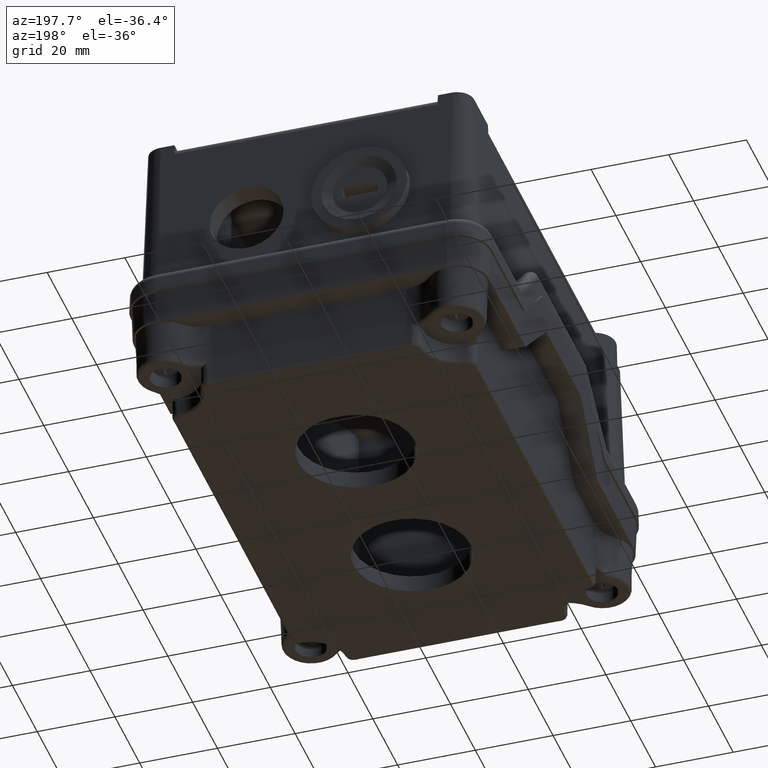
[diagram: clean part render]
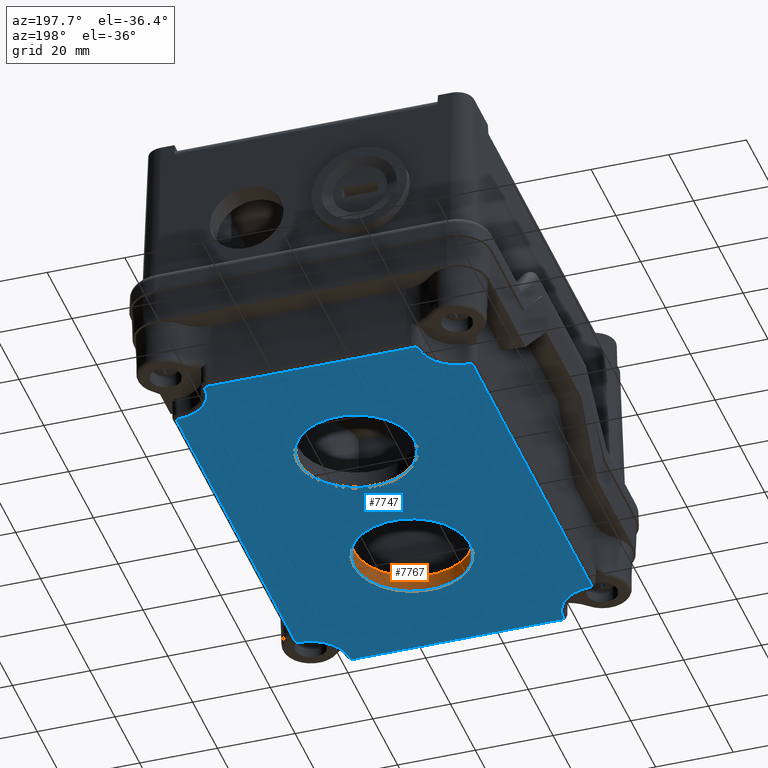
[diagram: same view with the hole feature highlighted: cylindrical wall and planar end face, labeled with their STEP entity ids]
A machine part, auxiliary view. The highlighted faces form one hole feature of diameter 30 mm: the cylindrical wall (entity #7767, orange) and its adjacent planar end face (entity #7747, blue) — they share a circular edge in the B-rep.
Wall:
#7736=CARTESIAN_POINT('',(52.783278526198842,-31.297894880833084,40.500000000000000));
#7737=VERTEX_POINT('',#7736);
#7738=CARTESIAN_POINT('',(37.783278526198842,-31.297894880833084,40.500000000000000));
#7739=DIRECTION('',(0.0,0.0,-1.0));
#7740=DIRECTION('',(-1.0,0.0,0.0));
#7741=AXIS2_PLACEMENT_3D('',#7738,#7739,#7740);
#7742=CIRCLE('',#7741,15.0);
#7743=EDGE_CURVE('',#7737,#7737,#7742,.T.);
#7748=CARTESIAN_POINT('',(37.783278526198842,-31.297894880833084,40.500000000000000));
#7749=DIRECTION('',(0.0,0.0,-1.0));
#7750=DIRECTION('',(-1.0,0.0,0.0));
#7751=AXIS2_PLACEMENT_3D('',#7748,#7749,#7750);
#7752=CYLINDRICAL_SURFACE('',#7751,15.0);
#7753=CARTESIAN_POINT('',(52.783278526198842,-31.297894880833084,36.0));
#7754=VERTEX_POINT('',#7753);
#7755=CARTESIAN_POINT('',(37.783278526198842,-31.297894880833084,36.0));
#7756=DIRECTION('',(0.0,0.0,1.0));
#7757=DIRECTION('',(-1.0,0.0,0.0));
#7758=AXIS2_PLACEMENT_3D('',#7755,#7756,#7757);
#7759=CIRCLE('',#7758,15.0);
#7760=EDGE_CURVE('',#7754,#7754,#7759,.T.);
#7761=ORIENTED_EDGE('',*,*,#7760,.F.);
#7762=EDGE_LOOP('',(#7761));
#7763=FACE_OUTER_BOUND('',#7762,.T.);
#7764=ORIENTED_EDGE('',*,*,#7743,.F.);
#7765=EDGE_LOOP('',(#7764));
#7766=FACE_BOUND('',#7765,.T.);
#7767=ADVANCED_FACE('',(#7763,#7766),#7752,.F.);
End face:
#5559=CARTESIAN_POINT('',(-0.336741534578411,37.261391683954855,40.500000000000000));
#5560=VERTEX_POINT('',#5559);
#5576=CARTESIAN_POINT('',(-0.336741534578376,-54.857181445621052,40.500000000000000));
#5577=VERTEX_POINT('',#5576);
#5585=CARTESIAN_POINT('',(-0.336741534578376,-54.857181445621052,40.500000000000000));
#5586=DIRECTION('',(0.0,1.0,0.0));
#5587=VECTOR('',#5586,92.118573129575907);
#5588=LINE('',#5585,#5587);
#5589=EDGE_CURVE('',#5577,#5560,#5588,.T.);
#5599=CARTESIAN_POINT('',(-0.416955998710054,38.585317413578004,40.500000000000000));
#5600=VERTEX_POINT('',#5599);
#5610=CARTESIAN_POINT('',(-11.302430309385482,37.261391683954855,40.500000000000000));
#5611=DIRECTION('',(0.0,0.0,1.0));
#5612=DIRECTION('',(0.998177473758042,0.060346755356137,0.0));
#5613=AXIS2_PLACEMENT_3D('',#5610,#5611,#5612);
#5614=CIRCLE('',#5613,10.965688774807212);
#5615=EDGE_CURVE('',#5560,#5600,#5614,.T.);
#5627=CARTESIAN_POINT('',(-0.416955998710128,-56.181107175244172,40.500000000000000));
#5628=VERTEX_POINT('',#5627);
#5636=CARTESIAN_POINT('',(-11.302430309385379,-54.857181445621052,40.500000000000000));
#5637=DIRECTION('',(0.0,0.0,1.0));
#5638=DIRECTION('',(0.998177473758042,-0.060346755356137,0.0));
#5639=AXIS2_PLACEMENT_3D('',#5636,#5637,#5638);
#5640=CIRCLE('',#5639,10.965688774807031);
#5641=EDGE_CURVE('',#5628,#5577,#5640,.T.);
#5751=CARTESIAN_POINT('',(0.549705304405506,39.705654910625157,40.500000000000000));
#5752=VERTEX_POINT('',#5751);
#5778=CARTESIAN_POINT('',(-0.416955998710062,38.585317413578068,40.500000000000000));
#5779=CARTESIAN_POINT('',(-0.426482221781451,38.663643149079007,40.500000000000000));
#5780=CARTESIAN_POINT('',(-0.426749987107683,38.804627468144083,40.499999999999808));
#5781=CARTESIAN_POINT('',(-0.396032246528081,38.950530565932340,40.499999999999780));
#5782=CARTESIAN_POINT('',(-0.371849090072704,39.025795377982419,40.499999999999780));
#5783=CARTESIAN_POINT('',(-0.338760014069456,39.119336805961304,40.499999999999787));
#5784=CARTESIAN_POINT('',(-0.278715663759485,39.235782000387509,40.499999999999815));
#5785=CARTESIAN_POINT('',(-0.182662596023846,39.361136775176298,40.499999999999815));
#5786=CARTESIAN_POINT('',(-0.015515514187188,39.532937454064410,40.499999999999872));
#5787=CARTESIAN_POINT('',(0.234066703792749,39.669166527768951,40.499999999999922));
#5788=CARTESIAN_POINT('',(0.470830399737453,39.703552725720144,40.500000000000000));
#5789=CARTESIAN_POINT('',(0.549705304405506,39.705654910625157,40.500000000000000));
#5790=B_SPLINE_CURVE_WITH_KNOTS('',3,(#5778,#5779,#5780,#5781,#5782,#5783,#5784,#5785,#5786,#5787,#5788,#5789),.UNSPECIFIED.,.F.,.U.,(4,1,1,1,1,1,1,1,1,4),(0.0,0.023670874067073,0.041424029617378,0.044382888875763,0.047341748134147,0.071012622201220,0.082848059234757,0.094683496268293,0.142025244402440,0.165696118469513),.UNSPECIFIED.);
#5791=EDGE_CURVE('',#5600,#5752,#5790,.T.);
#5920=CARTESIAN_POINT('',(0.549705304405435,-57.301444672291339,40.500000000000000));
#5921=VERTEX_POINT('',#5920);
#5929=CARTESIAN_POINT('',(0.549705304405428,-57.301444672291339,40.500000000000000));
#5930=CARTESIAN_POINT('',(0.470830399736933,-57.299342487386319,40.500000000000000));
#5931=CARTESIAN_POINT('',(0.312876737412766,-57.276249987053816,40.499999999999964));
#5932=CARTESIAN_POINT('',(0.091519842894753,-57.187290212524758,40.499999999999964));
#5933=CARTESIAN_POINT('',(-0.054844518446183,-57.083089145379290,40.499999999999950));
#5934=CARTESIAN_POINT('',(-0.140881661954740,-56.999887636847404,40.499999999999943));
#5935=CARTESIAN_POINT('',(-0.221326377444691,-56.912229873491178,40.499999999999943));
#5936=CARTESIAN_POINT('',(-0.288220557187907,-56.813312156864058,40.499999999999972));
#5937=CARTESIAN_POINT('',(-0.339821074052701,-56.705172118623878,40.499999999999950));
#5938=CARTESIAN_POINT('',(-0.384587155654210,-56.594711449037938,40.499999999999964));
#5939=CARTESIAN_POINT('',(-0.426733577401938,-56.420554670263925,40.499999999999972));
#5940=CARTESIAN_POINT('',(-0.426482221781576,-56.259432910745630,40.500000000000000));
#5941=CARTESIAN_POINT('',(-0.416955998710134,-56.181107175244250,40.500000000000000));
#5942=B_SPLINE_CURVE_WITH_KNOTS('',3,(#5929,#5930,#5931,#5932,#5933,#5934,#5935,#5936,#5937,#5938,#5939,#5940,#5941),.UNSPECIFIED.,.F.,.U.,(4,1,1,1,1,1,1,1,1,1,4),(0.0,0.023670874067206,0.047341748134412,0.071012622201618,0.076930340718420,0.082848059235221,0.106518933302427,0.112436651819229,0.118354370336031,0.142025244403237,0.165696118470443),.UNSPECIFIED.);
#5943=EDGE_CURVE('',#5921,#5628,#5942,.T.);
#5953=CARTESIAN_POINT('',(10.279728734740477,49.435678340959385,40.500000000000000));
#5954=VERTEX_POINT('',#5953);
#5972=CARTESIAN_POINT('',(0.283278526198748,49.702105119166902,40.500000000000000));
#5973=DIRECTION('',(0.0,0.0,1.0));
#5974=DIRECTION('',(0.707106781186545,-0.707106781186550,0.0));
#5975=AXIS2_PLACEMENT_3D('',#5972,#5973,#5974);
#5976=CIRCLE('',#5975,10.0);
#5977=EDGE_CURVE('',#5752,#5954,#5976,.T.);
#5989=CARTESIAN_POINT('',(10.279728734740479,-67.031468102625610,40.500000000000000));
#5990=VERTEX_POINT('',#5989);
#5998=CARTESIAN_POINT('',(0.283278526198749,-67.297894880833098,40.500000000000000));
#5999=DIRECTION('',(0.0,0.0,1.0));
#6000=DIRECTION('',(0.707106781186548,0.707106781186547,0.0));
#6001=AXIS2_PLACEMENT_3D('',#5998,#5999,#6000);
#6002=CIRCLE('',#6001,10.0);
#6003=EDGE_CURVE('',#5990,#5921,#6002,.T.);
#6113=CARTESIAN_POINT('',(11.400066231787580,50.402339644075759,40.500000000000000));
#6114=VERTEX_POINT('',#6113);
#6138=CARTESIAN_POINT('',(10.279728734740498,49.435678340960138,40.500000000000000));
#6139=CARTESIAN_POINT('',(10.281305366113568,49.494834245348663,40.500000000000000));
#6140=CARTESIAN_POINT('',(10.290442645006078,49.574108346244188,40.500000000000021));
#6141=CARTESIAN_POINT('',(10.327701524942045,49.729348422229663,40.500000000000021));
#6142=CARTESIAN_POINT('',(10.394368737991742,49.895002657294143,40.500000000000028));
#6143=CARTESIAN_POINT('',(10.499936182284976,50.042480351163434,40.500000000000028));
#6144=CARTESIAN_POINT('',(10.610011937254189,50.155813882994494,40.500000000000014));
#6145=CARTESIAN_POINT('',(10.733994915855659,50.256492181403232,40.500000000000036));
#6146=CARTESIAN_POINT('',(10.930087346563184,50.356671023864912,40.500000000000021));
#6147=CARTESIAN_POINT('',(11.161999848725523,50.412156056838676,40.500000000000021));
#6148=CARTESIAN_POINT('',(11.321740859225304,50.411865823005407,40.500000000000000));
#6149=CARTESIAN_POINT('',(11.400066231787580,50.402339644075767,40.500000000000000));
#6150=B_SPLINE_CURVE_WITH_KNOTS('',3,(#6138,#6139,#6140,#6141,#6142,#6143,#6144,#6145,#6146,#6147,#6148,#6149),.UNSPECIFIED.,.F.,.U.,(4,1,1,1,1,1,1,1,1,4),(0.0,0.017753073287348,0.023670764383131,0.047341528766262,0.071012293149393,0.076929984245176,0.094683057532524,0.118353821915655,0.142024586298787,0.165695350681918),.UNSPECIFIED.);
#6151=EDGE_CURVE('',#5954,#6114,#6150,.T.);
#6271=CARTESIAN_POINT('',(11.400066231787580,-67.998129405741878,40.500000000000000));
#6272=VERTEX_POINT('',#6271);
#6280=CARTESIAN_POINT('',(11.400066231787580,-67.998129405741878,40.500000000000000));
#6281=CARTESIAN_POINT('',(11.321740859224745,-68.007655584671582,40.500000000000000));
#6282=CARTESIAN_POINT('',(11.082498934690406,-68.008436048963645,40.500000000000036));
#6283=CARTESIAN_POINT('',(10.815638859349370,-67.910170913589809,40.500000000000050));
#6284=CARTESIAN_POINT('',(10.625191949040410,-67.764650366488425,40.500000000000078));
#6285=CARTESIAN_POINT('',(10.511844708894511,-67.654675235715416,40.500000000000064));
#6286=CARTESIAN_POINT('',(10.435415112740520,-67.548255114636760,40.500000000000085));
#6287=CARTESIAN_POINT('',(10.388992703377404,-67.460570353079461,40.500000000000078));
#6288=CARTESIAN_POINT('',(10.354051155022898,-67.389661117339386,40.500000000000078));
#6289=CARTESIAN_POINT('',(10.302276953244990,-67.249824706873042,40.500000000000085));
#6290=CARTESIAN_POINT('',(10.281830909904604,-67.110342641811513,40.500000000000000));
#6291=CARTESIAN_POINT('',(10.279728734740496,-67.031468102626263,40.500000000000000));
#6292=B_SPLINE_CURVE_WITH_KNOTS('',3,(#6280,#6281,#6282,#6283,#6284,#6285,#6286,#6287,#6288,#6289,#6290,#6291),.UNSPECIFIED.,.F.,.U.,(4,1,1,1,1,1,1,1,1,4),(0.0,0.023670764383300,0.071012293149899,0.082847675341549,0.094683057533199,0.118353821916499,0.121312667464411,0.124271513012324,0.142024586299799,0.165695350683099),.UNSPECIFIED.);
#6293=EDGE_CURVE('',#6272,#5990,#6292,.T.);
#6303=CARTESIAN_POINT('',(12.723991961410807,50.322125179943953,40.500000000000000));
#6304=VERTEX_POINT('',#6303);
#6314=CARTESIAN_POINT('',(12.723991961410805,61.287813954751122,40.500000000000000));
#6315=DIRECTION('',(0.0,0.0,1.0));
#6316=DIRECTION('',(-0.060346755356137,-0.998177473758042,0.0));
#6317=AXIS2_PLACEMENT_3D('',#6314,#6315,#6316);
#6318=CIRCLE('',#6317,10.965688774807163);
#6319=EDGE_CURVE('',#6114,#6304,#6318,.T.);
#6331=CARTESIAN_POINT('',(12.723991961410801,-67.917914941610093,40.500000000000000));
#6332=VERTEX_POINT('',#6331);
#6340=CARTESIAN_POINT('',(12.723991961410805,-78.883603716417213,40.500000000000000));
#6341=DIRECTION('',(0.0,0.0,1.0));
#6342=DIRECTION('',(-0.060346755356138,0.998177473758042,0.0));
#6343=AXIS2_PLACEMENT_3D('',#6340,#6341,#6342);
#6344=CIRCLE('',#6343,10.965688774807122);
#6345=EDGE_CURVE('',#6332,#6272,#6344,.T.);
#6363=CARTESIAN_POINT('',(62.842565090986717,50.322125179944052,40.500000000000000));
#6364=VERTEX_POINT('',#6363);
#6379=CARTESIAN_POINT('',(12.723991961410807,50.322125179943953,40.500000000000000));
#6380=DIRECTION('',(1.0,0.0,0.0));
#6381=VECTOR('',#6380,50.118573129575907);
#6382=LINE('',#6379,#6381);
#6383=EDGE_CURVE('',#6304,#6364,#6382,.T.);
#6395=CARTESIAN_POINT('',(62.842565090986710,-67.917914941610206,40.500000000000000));
#6396=VERTEX_POINT('',#6395);
#6404=CARTESIAN_POINT('',(62.842565090986710,-67.917914941610206,40.500000000000000));
#6405=DIRECTION('',(-1.0,0.0,0.0));
#6406=VECTOR('',#6405,50.118573129575907);
#6407=LINE('',#6404,#6406);
#6408=EDGE_CURVE('',#6396,#6332,#6407,.T.);
#6425=CARTESIAN_POINT('',(64.166490820609866,50.402339644075738,40.500000000000000));
#6426=VERTEX_POINT('',#6425);
#6436=CARTESIAN_POINT('',(62.842565090986717,61.287813954751122,40.500000000000000));
#6437=DIRECTION('',(0.0,0.0,1.0));
#6438=DIRECTION('',(0.060346755356138,-0.998177473758042,0.0));
#6439=AXIS2_PLACEMENT_3D('',#6436,#6437,#6438);
#6440=CIRCLE('',#6439,10.965688774807164);
#6441=EDGE_CURVE('',#6364,#6426,#6440,.T.);
#6453=CARTESIAN_POINT('',(64.166490820609880,-67.998129405742063,40.500000000000000));
#6454=VERTEX_POINT('',#6453);
#6462=CARTESIAN_POINT('',(62.842565090986710,-78.883603716417312,40.500000000000000));
#6463=DIRECTION('',(0.0,0.0,1.0));
#6464=DIRECTION('',(0.060346755356140,0.998177473758042,0.0));
#6465=AXIS2_PLACEMENT_3D('',#6462,#6463,#6464);
#6466=CIRCLE('',#6465,10.965688774807038);
#6467=EDGE_CURVE('',#6454,#6396,#6466,.T.);
#6561=CARTESIAN_POINT('',(65.286828317657026,49.435678340960180,40.500000000000000));
#6562=VERTEX_POINT('',#6561);
#6586=CARTESIAN_POINT('',(64.166490820609937,50.402339644075738,40.500000000000000));
#6587=CARTESIAN_POINT('',(64.244816556110877,50.411865867147128,40.500000000000000));
#6588=CARTESIAN_POINT('',(64.405747022648725,50.412201503566934,40.500000000000007));
#6589=CARTESIAN_POINT('',(64.638062305865773,50.356096653003711,40.500000000000007));
#6590=CARTESIAN_POINT('',(64.852154405461476,50.246243517156159,40.500000000000007));
#6591=CARTESIAN_POINT('',(65.033251881175374,50.089480449130370,40.500000000000007));
#6592=CARTESIAN_POINT('',(65.172995540195842,49.893638128479743,40.500000000000000));
#6593=CARTESIAN_POINT('',(65.261613782242449,49.672540571095524,40.500000000000007));
#6594=CARTESIAN_POINT('',(65.284726132752013,49.514553245628242,40.500000000000000));
#6595=CARTESIAN_POINT('',(65.286828317657026,49.435678340960187,40.500000000000000));
#6596=B_SPLINE_CURVE_WITH_KNOTS('',3,(#6586,#6587,#6588,#6589,#6590,#6591,#6592,#6593,#6594,#6595),.UNSPECIFIED.,.F.,.U.,(4,1,1,1,1,1,1,4),(0.0,0.023670874067073,0.047341748134146,0.071012622201220,0.094683496268293,0.118354370335366,0.142025244402439,0.165696118469513),.UNSPECIFIED.);
#6597=EDGE_CURVE('',#6426,#6562,#6596,.T.);
#6717=CARTESIAN_POINT('',(65.286828317657054,-67.031468102626476,40.500000000000000));
#6718=VERTEX_POINT('',#6717);
#6726=CARTESIAN_POINT('',(65.286828317657054,-67.031468102626491,40.500000000000000));
#6727=CARTESIAN_POINT('',(65.284726132752041,-67.110343007294972,40.500000000000000));
#6728=CARTESIAN_POINT('',(65.250341075508970,-67.347104648974948,40.499999999999922));
#6729=CARTESIAN_POINT('',(65.114112660824929,-67.596686286915997,40.499999999999872));
#6730=CARTESIAN_POINT('',(64.942312332366512,-67.763833070764719,40.499999999999844));
#6731=CARTESIAN_POINT('',(64.816957597347781,-67.859886106565753,40.499999999999829));
#6732=CARTESIAN_POINT('',(64.700512177144233,-67.919930909974155,40.499999999999808));
#6733=CARTESIAN_POINT('',(64.606970682333994,-67.953020112342017,40.499999999999808));
#6734=CARTESIAN_POINT('',(64.531705783168817,-67.977203377435856,40.499999999999808));
#6735=CARTESIAN_POINT('',(64.385802651295421,-68.007921251241626,40.499999999999844));
#6736=CARTESIAN_POINT('',(64.244816556111331,-68.007655628813524,40.500000000000000));
#6737=CARTESIAN_POINT('',(64.166490820609951,-67.998129405742077,40.500000000000000));
#6738=B_SPLINE_CURVE_WITH_KNOTS('',3,(#6726,#6727,#6728,#6729,#6730,#6731,#6732,#6733,#6734,#6735,#6736,#6737),.UNSPECIFIED.,.F.,.U.,(4,1,1,1,1,1,1,1,1,4),(0.0,0.023670874067206,0.071012622201619,0.082848059235223,0.094683496268826,0.118354370336032,0.121313229594433,0.124272088852834,0.142025244403239,0.165696118470445),.UNSPECIFIED.);
#6739=EDGE_CURVE('',#6718,#6454,#6738,.T.);
#6749=CARTESIAN_POINT('',(75.016851747991296,39.705654910625171,40.500000000000000));
#6750=VERTEX_POINT('',#6749);
#6768=CARTESIAN_POINT('',(75.283278526198785,49.702105119166902,40.500000000000000));
#6769=DIRECTION('',(0.0,0.0,1.0));
#6770=DIRECTION('',(-0.707106781186550,-0.707106781186545,0.0));
#6771=AXIS2_PLACEMENT_3D('',#6768,#6769,#6770);
#6772=CIRCLE('',#6771,10.0);
#6773=EDGE_CURVE('',#6562,#6750,#6772,.T.);
#6785=CARTESIAN_POINT('',(75.016851747991566,-57.301444672291339,40.500000000000000));
#6786=VERTEX_POINT('',#6785);
#6794=CARTESIAN_POINT('',(75.283278526198799,-67.297894880833070,40.500000000000000));
#6795=DIRECTION('',(0.0,0.0,1.0));
#6796=DIRECTION('',(-0.707106781186543,0.707106781186552,0.0));
#6797=AXIS2_PLACEMENT_3D('',#6794,#6795,#6796);
#6798=CIRCLE('',#6797,9.999999999999998);
#6799=EDGE_CURVE('',#6786,#6718,#6798,.T.);
#6901=CARTESIAN_POINT('',(75.983513051107664,38.585317413578068,40.500000000000000));
#6902=VERTEX_POINT('',#6901);
#6925=CARTESIAN_POINT('',(75.016851747992064,39.705654910625150,40.500000000000000));
#6926=CARTESIAN_POINT('',(75.095726287176760,39.703552735461059,40.500000000000000));
#6927=CARTESIAN_POINT('',(75.255284151195369,39.680045961617893,40.500000000000036));
#6928=CARTESIAN_POINT('',(75.412050971310009,39.616629248735791,40.500000000000028));
#6929=CARTESIAN_POINT('',(75.498308342891875,39.567581628043165,40.500000000000043));
#6930=CARTESIAN_POINT('',(75.600566316576931,39.505260954965983,40.500000000000057));
#6931=CARTESIAN_POINT('',(75.713872404624496,39.407662876892410,40.500000000000036));
#6932=CARTESIAN_POINT('',(75.895336697482193,39.169968344115190,40.500000000000036));
#6933=CARTESIAN_POINT('',(75.993918639442001,38.902819143656160,40.500000000000007));
#6934=CARTESIAN_POINT('',(75.993039230037311,38.663642786140343,40.500000000000000));
#6935=CARTESIAN_POINT('',(75.983513051107664,38.585317413578075,40.500000000000000));
#6936=B_SPLINE_CURVE_WITH_KNOTS('',3,(#6925,#6926,#6927,#6928,#6929,#6930,#6931,#6932,#6933,#6934,#6935),.UNSPECIFIED.,.F.,.U.,(4,1,1,1,1,1,1,1,4),(0.0,0.023670764383131,0.047341528766262,0.050300374314153,0.053259219862045,0.082847675340959,0.094683057532524,0.142024586298786,0.165695350681917),.UNSPECIFIED.);
#6937=EDGE_CURVE('',#6750,#6902,#6936,.T.);
#7066=CARTESIAN_POINT('',(75.983513051107835,-56.181107175244236,40.500000000000000));
#7067=VERTEX_POINT('',#7066);
#7075=CARTESIAN_POINT('',(75.983513051107821,-56.181107175244243,40.500000000000000));
#7076=CARTESIAN_POINT('',(75.993039230037525,-56.259432547807080,40.500000000000000));
#7077=CARTESIAN_POINT('',(75.993404576145679,-56.419065417874442,40.499999999999993));
#7078=CARTESIAN_POINT('',(75.937841128325573,-56.651063882392400,40.499999999999979));
#7079=CARTESIAN_POINT('',(75.856155102495620,-56.811108238369059,40.499999999999972));
#7080=CARTESIAN_POINT('',(75.786422695778938,-56.908378933576316,40.499999999999972));
#7081=CARTESIAN_POINT('',(75.711470640226096,-57.000761774413249,40.499999999999964));
#7082=CARTESIAN_POINT('',(75.623380451503024,-57.081405619762855,40.500000000000000));
#7083=CARTESIAN_POINT('',(75.523951842767033,-57.148266330766802,40.499999999999986));
#7084=CARTESIAN_POINT('',(75.421235746799525,-57.208711974927660,40.499999999999993));
#7085=CARTESIAN_POINT('',(75.255130126333754,-57.275919948726042,40.499999999999986));
#7086=CARTESIAN_POINT('',(75.095726287177470,-57.299342497127213,40.500000000000000));
#7087=CARTESIAN_POINT('',(75.016851747992206,-57.301444672291318,40.500000000000000));
#7088=B_SPLINE_CURVE_WITH_KNOTS('',3,(#7075,#7076,#7077,#7078,#7079,#7080,#7081,#7082,#7083,#7084,#7085,#7086,#7087),.UNSPECIFIED.,.F.,.U.,(4,1,1,1,1,1,1,1,1,1,4),(0.0,0.023670764383300,0.047341528766600,0.071012293149900,0.076929984245725,0.082847675341550,0.106518439724851,0.112436130820676,0.118353821916501,0.142024586299801,0.165695350683101),.UNSPECIFIED.);
#7089=EDGE_CURVE('',#7067,#6786,#7088,.T.);
#7099=CARTESIAN_POINT('',(75.903298586975879,37.261391683954834,40.500000000000000));
#7100=VERTEX_POINT('',#7099);
#7110=CARTESIAN_POINT('',(86.868987361782999,37.261391683954841,40.500000000000000));
#7111=DIRECTION('',(0.0,0.0,1.0));
#7112=DIRECTION('',(-0.998177473758042,0.060346755356138,0.0));
#7113=AXIS2_PLACEMENT_3D('',#7110,#7111,#7112);
#7114=CIRCLE('',#7113,10.965688774807118);
#7115=EDGE_CURVE('',#6902,#7100,#7114,.T.);
#7127=CARTESIAN_POINT('',(75.903298586976035,-54.857181445620952,40.500000000000000));
#7128=VERTEX_POINT('',#7127);
#7136=CARTESIAN_POINT('',(86.868987361783041,-54.857181445620959,40.500000000000000));
#7137=DIRECTION('',(0.0,0.0,1.000000000000000));
#7138=DIRECTION('',(-0.998177473758042,-0.060346755356141,0.0));
#7139=AXIS2_PLACEMENT_3D('',#7136,#7137,#7138);
#7140=CIRCLE('',#7139,10.965688774807003);
#7141=EDGE_CURVE('',#7128,#7067,#7140,.T.);
#7160=CARTESIAN_POINT('',(75.903298586975879,37.261391683954834,40.500000000000000));
#7161=DIRECTION('',(0.0,-1.0,0.0));
#7162=VECTOR('',#7161,92.118573129575793);
#7163=LINE('',#7160,#7162);
#7164=EDGE_CURVE('',#7100,#7128,#7163,.T.);
#7694=CARTESIAN_POINT('',(37.783278526198757,-8.797894880833077,40.500000000000000));
#7695=DIRECTION('',(0.0,0.0,1.0));
#7696=DIRECTION('',(1.0,0.0,0.0));
#7697=AXIS2_PLACEMENT_3D('',#7694,#7695,#7696);
#7698=PLANE('',#7697);
#7699=ORIENTED_EDGE('',*,*,#5589,.F.);
#7700=ORIENTED_EDGE('',*,*,#5641,.F.);
#7701=ORIENTED_EDGE('',*,*,#5943,.F.);
#7702=ORIENTED_EDGE('',*,*,#6003,.F.);
#7703=ORIENTED_EDGE('',*,*,#6293,.F.);
#7704=ORIENTED_EDGE('',*,*,#6345,.F.);
#7705=ORIENTED_EDGE('',*,*,#6408,.F.);
#7706=ORIENTED_EDGE('',*,*,#6467,.F.);
#7707=ORIENTED_EDGE('',*,*,#6739,.F.);
#7708=ORIENTED_EDGE('',*,*,#6799,.F.);
#7709=ORIENTED_EDGE('',*,*,#7089,.F.);
#7710=ORIENTED_EDGE('',*,*,#7141,.F.);
#7711=ORIENTED_EDGE('',*,*,#7164,.F.);
#7712=ORIENTED_EDGE('',*,*,#7115,.F.);
#7713=ORIENTED_EDGE('',*,*,#6937,.F.);
#7714=ORIENTED_EDGE('',*,*,#6773,.F.);
#7715=ORIENTED_EDGE('',*,*,#6597,.F.);
#7716=ORIENTED_EDGE('',*,*,#6441,.F.);
#7717=ORIENTED_EDGE('',*,*,#6383,.F.);
#7718=ORIENTED_EDGE('',*,*,#6319,.F.);
#7719=ORIENTED_EDGE('',*,*,#6151,.F.);
#7720=ORIENTED_EDGE('',*,*,#5977,.F.);
#7721=ORIENTED_EDGE('',*,*,#5791,.F.);
#7722=ORIENTED_EDGE('',*,*,#5615,.F.);
#7723=EDGE_LOOP('',(#7699,#7700,#7701,#7702,#7703,#7704,#7705,#7706,#7707,#7708,#7709,#7710,#7711,#7712,#7713,#7714,#7715,#7716,#7717,#7718,#7719,#7720,#7721,#7722));
#7724=FACE_OUTER_BOUND('',#7723,.T.);
#7725=CARTESIAN_POINT('',(52.783278526198799,13.702105119166925,40.500000000000000));
#7726=VERTEX_POINT('',#7725);
#7727=CARTESIAN_POINT('',(37.783278526198799,13.702105119166923,40.500000000000000));
#7728=DIRECTION('',(0.0,0.0,-1.0));
#7729=DIRECTION('',(-1.0,0.0,0.0));
#7730=AXIS2_PLACEMENT_3D('',#7727,#7728,#7729);
#7731=CIRCLE('',#7730,15.0);
#7732=EDGE_CURVE('',#7726,#7726,#7731,.T.);
#7733=ORIENTED_EDGE('',*,*,#7732,.T.);
#7734=EDGE_LOOP('',(#7733));
#7735=FACE_BOUND('',#7734,.T.);
#7736=CARTESIAN_POINT('',(52.783278526198842,-31.297894880833084,40.500000000000000));
#7737=VERTEX_POINT('',#7736);
#7738=CARTESIAN_POINT('',(37.783278526198842,-31.297894880833084,40.500000000000000));
#7739=DIRECTION('',(0.0,0.0,-1.0));
#7740=DIRECTION('',(-1.0,0.0,0.0));
#7741=AXIS2_PLACEMENT_3D('',#7738,#7739,#7740);
#7742=CIRCLE('',#7741,15.0);
#7743=EDGE_CURVE('',#7737,#7737,#7742,.T.);
#7744=ORIENTED_EDGE('',*,*,#7743,.T.);
#7745=EDGE_LOOP('',(#7744));
#7746=FACE_BOUND('',#7745,.T.);
#7747=ADVANCED_FACE('',(#7724,#7735,#7746),#7698,.T.);